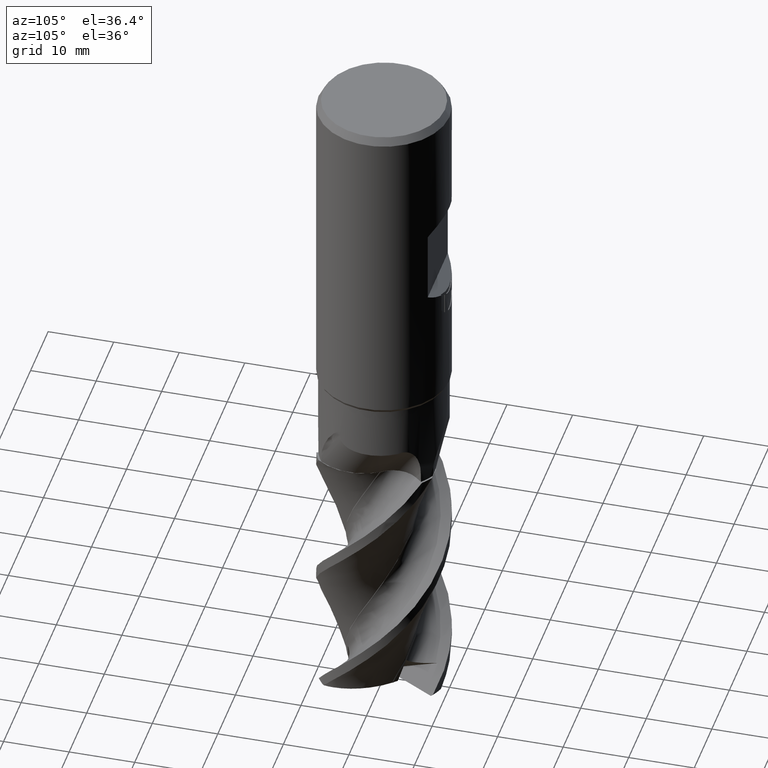
[diagram: clean part render]
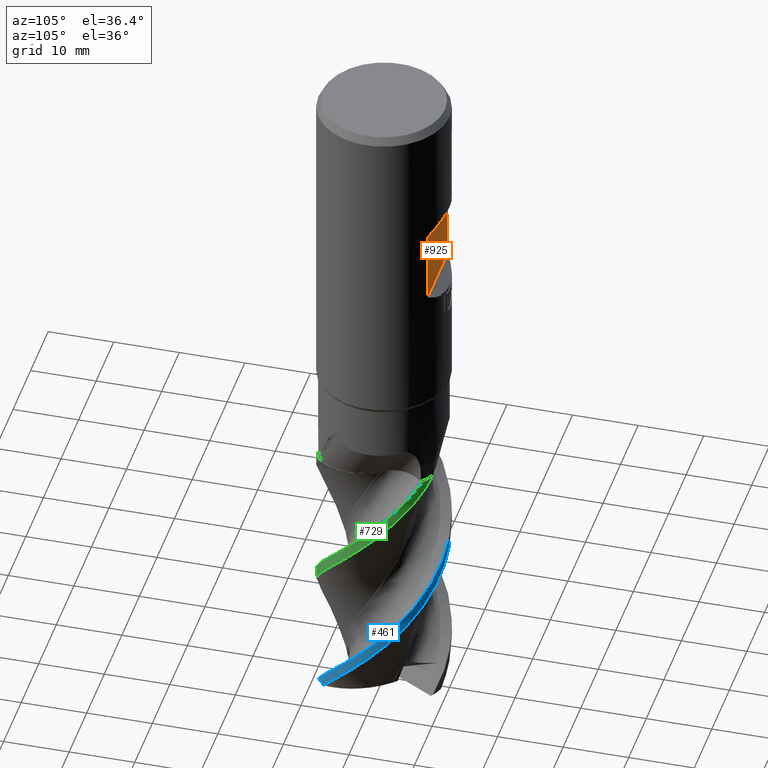
[diagram: same view with three faces highlighted in distinct colors, each labeled with its STEP entity id]
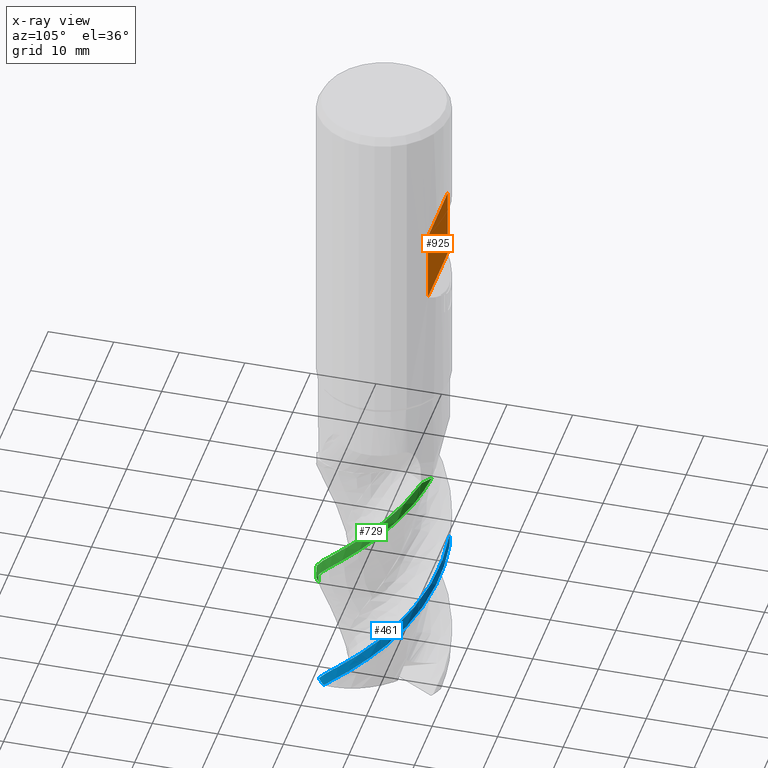
[diagram: x-ray of the same camera — body ghosted, the three highlighted faces saturated]
A machine part, auxiliary view with three faces highlighted in distinct colors.
The next image is the same camera in x-ray (body ghosted, the three faces saturated) — at least one of them is partly hidden behind the body in this view.
Their STEP definitions:

[orange] entity #925 — the highlighted planar face has unit normal (0, -1, 0).
#521=EDGE_CURVE('',#543,#929,#1381,.T.);
#529=EDGE_CURVE('',#1177,#929,#1390,.T.);
#543=VERTEX_POINT('',#1405);
#605=EDGE_CURVE('',#543,#1059,#1477,.T.);
#841=EDGE_CURVE('',#1059,#1177,#1731,.T.);
#925=ADVANCED_FACE('',(#1820),#1821,.F.);
#929=VERTEX_POINT('',#1825);
#1059=VERTEX_POINT('',#1969);
#1177=VERTEX_POINT('',#2094);
#1381=LINE('',#3022,#3023);
#1390=LINE('',#3081,#3082);
#1405=CARTESIAN_POINT('',(-5.72363520850167,8.2,-19.5));
#1477=LINE('',#4191,#4192);
#1731=LINE('',#5593,#5594);
#1820=FACE_OUTER_BOUND('',#6811,.T.);
#1821=PLANE('',#6812);
#1825=CARTESIAN_POINT('',(5.72363520850167,8.2,-19.5));
#1969=CARTESIAN_POINT('',(-5.72363520850167,8.2,-30.5));
#2094=CARTESIAN_POINT('',(5.72363520850167,8.2,-30.5));
#3022=CARTESIAN_POINT('',(-10.0,8.2,-19.5));
#3023=VECTOR('',#9876,1.0);
#3081=CARTESIAN_POINT('',(5.72363520850167,8.2,-25.0));
#3082=VECTOR('',#9885,1.0);
#4191=CARTESIAN_POINT('',(-5.72363520850167,8.2,-25.0));
#4192=VECTOR('',#10030,1.0);
#5593=CARTESIAN_POINT('',(-10.0,8.2,-30.5));
#5594=VECTOR('',#10309,1.0);
#6811=EDGE_LOOP('',(#10381,#10382,#10383,#10384));
#6812=AXIS2_PLACEMENT_3D('',#10385,#10386,#10387);
#9876=DIRECTION('',(1.0,0.0,0.0));
#9885=DIRECTION('',(-0.0,-0.0,1.0));
#10030=DIRECTION('',(0.0,0.0,-1.0));
#10309=DIRECTION('',(1.0,0.0,0.0));
#10381=ORIENTED_EDGE('',*,*,#529,.F.);
#10382=ORIENTED_EDGE('',*,*,#841,.F.);
#10383=ORIENTED_EDGE('',*,*,#605,.F.);
#10384=ORIENTED_EDGE('',*,*,#521,.T.);
#10385=CARTESIAN_POINT('',(-10.0,8.2,-30.5));
#10386=DIRECTION('',(0.0,-1.0,0.0));
#10387=DIRECTION('',(0.0,0.0,-1.0));

[blue] entity #461 — the highlighted conical surface has half-angle 0 deg.
#461=ADVANCED_FACE('',(#1316),#1317,.T.);
#649=EDGE_CURVE('',#703,#1271,#1523,.T.);
#703=VERTEX_POINT('',#1580);
#835=VERTEX_POINT('',#1725);
#1045=EDGE_CURVE('',#1137,#1271,#1953,.T.);
#1057=EDGE_CURVE('',#1077,#835,#1967,.T.);
#1077=VERTEX_POINT('',#1987);
#1101=EDGE_CURVE('',#703,#1077,#2011,.T.);
#1117=EDGE_CURVE('',#1137,#835,#2028,.T.);
#1137=VERTEX_POINT('',#2050);
#1271=VERTEX_POINT('',#2202);
#1316=FACE_OUTER_BOUND('',#2244,.T.);
#1317=CONICAL_SURFACE('',#2245,9.99995,2.51256281405921E-006);
#1523=CIRCLE('',#4304,10.0);
#1580=CARTESIAN_POINT('',(6.61336361160003,-7.50089472934826,-103.8));
#1725=CARTESIAN_POINT('',(-1.44784733791504E-012,9.99993947624046,-79.7115437015263));
#1953=B_SPLINE_CURVE_WITH_KNOTS('',3,(#8296,#8297,#8298,#8299,#8300,#8301,#8302,#8303,#8304,#8305,#8306,#8307,#8308,#8309,#8310,#8311,#8312,#8313,#8314,#8315,#8316,#8317,#8318,#8319,#8320,#8321,#8322,#8323,#8324,#8325,#8326,#8327,#8328,#8329,#8330,#8331,#8332,#8333,#8334,#8335,#8336,#8337,#8338,#8339,#8340,#8341,#8342,#8343,#8344,#8345),.UNSPECIFIED.,.F.,.F.,(4,2,2,2,2,2,2,2,2,2,2,2,2,2,2,2,2,2,2,2,2,2,2,2,4),(0.0,1.83688179088632,5.68461323344617,6.58714347548121,8.38778271226653,10.2578606888634,12.9205590427445,14.8115356261273,18.507071820997,20.4283711112207,22.1734569225614,24.0094227868724,26.6497551941611,28.5041572687774,32.1316176911137,34.0160028990023,35.713504521051,37.512762740781,39.9990802534086,40.9011966697282,43.2801547555303,44.7519676223213,45.309646177908,46.6616631189539,47.8933672128346),.UNSPECIFIED.);
#1967=B_SPLINE_CURVE_WITH_KNOTS('',3,(#8362,#8363,#8364,#8365,#8366,#8367,#8368,#8369,#8370,#8371,#8372,#8373,#8374,#8375,#8376,#8377,#8378,#8379,#8380,#8381,#8382,#8383,#8384,#8385,#8386,#8387,#8388,#8389,#8390,#8391,#8392,#8393,#8394,#8395,#8396,#8397,#8398,#8399,#8400,#8401,#8402,#8403,#8404,#8405,#8406,#8407,#8408,#8409,#8410,#8411),.UNSPECIFIED.,.F.,.F.,(4,2,2,2,2,2,2,2,2,2,2,2,2,2,2,2,2,2,2,2,2,2,2,2,4),(0.0,6.65242903024763,7.56982083744152,9.39002536430975,13.1654422231845,14.8642968365969,18.4570516658264,19.775683816953,21.4348193968141,23.0557497425016,26.2948814002811,27.9268426898688,29.5151957014848,32.6893999396295,34.2886948796586,35.8451217292304,38.9553312426421,40.5223597795722,43.2828128134381,44.4623509281644,46.282936741235,48.9671843551809,50.3099974556583,50.9855578351501,51.6831145815169),.UNSPECIFIED.);
#1987=CARTESIAN_POINT('',(6.74215560576316,-7.38534596503248,-103.744987352058));
#2011=ELLIPSE('',#8527,10.5146239393431,10.0000016139019);
#2028=LINE('',#8564,#8565);
#2050=CARTESIAN_POINT('',(2.41256380381924E-013,9.99993471722382,-77.8174550813689));
#2202=CARTESIAN_POINT('',(5.16433493080699,-8.56327301459242,-103.8));
#2244=EDGE_LOOP('',(#9816,#9817,#9818,#9819,#9820));
#2245=AXIS2_PLACEMENT_3D('',#9821,#9822,#9823);
#4304=AXIS2_PLACEMENT_3D('',#10068,#10069,#10070);
#8296=CARTESIAN_POINT('',(-9.8195921515313,1.89039942540851,-64.0));
#8297=CARTESIAN_POINT('',(-9.73680179583058,2.32045577612645,-64.4279032008373));
#8298=CARTESIAN_POINT('',(-9.62616861492684,2.74299842483845,-64.8612519519152));
#8299=CARTESIAN_POINT('',(-9.20147259722876,4.02005363807295,-66.2119453588237));
#8300=CARTESIAN_POINT('',(-8.79681885369268,4.84242542738371,-67.1408594066878));
#8301=CARTESIAN_POINT('',(-8.16514397107321,5.77707335028328,-68.2666298142365));
#8302=CARTESIAN_POINT('',(-8.03905614943915,5.95133236644778,-68.4799434901195));
#8303=CARTESIAN_POINT('',(-7.6434263994983,6.46232165426562,-69.1162582574725));
#8304=CARTESIAN_POINT('',(-7.35946761866097,6.78430140816072,-69.5345292134535));
#8305=CARTESIAN_POINT('',(-6.72891096634235,7.41115819908335,-70.4222580444062));
#8306=CARTESIAN_POINT('',(-6.38746227012636,7.70720699300879,-70.8778866002762));
#8307=CARTESIAN_POINT('',(-5.51751157652145,8.36455225197479,-71.9813376341191));
#8308=CARTESIAN_POINT('',(-4.96811168381596,8.70254915214437,-72.6321638236527));
#8309=CARTESIAN_POINT('',(-3.97444745947986,9.18766042162107,-73.7311607623126));
#8310=CARTESIAN_POINT('',(-3.55336347728873,9.3585454748018,-74.1709372673356));
#8311=CARTESIAN_POINT('',(-2.26623385999863,9.78088875441132,-75.514618129322));
#8312=CARTESIAN_POINT('',(-1.38483293467721,9.94334112034112,-76.4215144979877));
#8313=CARTESIAN_POINT('',(-0.0363006088850028,10.0105285744786,-77.7826774828773));
#8314=CARTESIAN_POINT('',(0.428775960197617,10.0016701883967,-78.247236054852));
#8315=CARTESIAN_POINT('',(1.3172894859256,9.9218848606799,-79.1252920679502));
#8316=CARTESIAN_POINT('',(1.7360398637281,9.85749995050665,-79.5382619480409));
#8317=CARTESIAN_POINT('',(2.59874100573697,9.66698184683463,-80.4203157849213));
#8318=CARTESIAN_POINT('',(3.03234541832829,9.53971035256465,-80.8759048502464));
#8319=CARTESIAN_POINT('',(4.0615590237687,9.16084746319968,-81.9857675872801));
#8320=CARTESIAN_POINT('',(4.64847958002076,8.87790319686943,-82.6431174089107));
#8321=CARTESIAN_POINT('',(5.59777984951222,8.29905298076998,-83.7477824578689));
#8322=CARTESIAN_POINT('',(5.96848125758253,8.03655919389752,-84.1873210526903));
#8323=CARTESIAN_POINT('',(7.01801302311412,7.17985215591402,-85.531584927985));
#8324=CARTESIAN_POINT('',(7.6301750734402,6.5245551675841,-86.4390864183552));
#8325=CARTESIAN_POINT('',(8.41368232905812,5.42424226569849,-87.8005745330614));
#8326=CARTESIAN_POINT('',(8.65678997469815,5.02769801326058,-88.2649574624631));
#8327=CARTESIAN_POINT('',(9.06669987096167,4.23928760390179,-89.1392161205382));
#8328=CARTESIAN_POINT('',(9.23701700052727,3.85479958518363,-89.5493891767617));
#8329=CARTESIAN_POINT('',(9.5410969636832,3.02853654652327,-90.4285406652441));
#8330=CARTESIAN_POINT('',(9.66794885189552,2.59471603395918,-90.8842700001985));
#8331=CARTESIAN_POINT('',(9.89893487455372,1.54824090147482,-91.9688175478429));
#8332=CARTESIAN_POINT('',(9.9766331728941,0.927206279076268,-92.6004351387727));
#8333=CARTESIAN_POINT('',(10.0022994472353,0.0727103344601177,-93.450955853776));
#8334=CARTESIAN_POINT('',(10.0013906285882,-0.155806862244051,-93.6766676732029));
#8335=CARTESIAN_POINT('',(9.96927950575422,-0.989334851649771,-94.4938435346194));
#8336=CARTESIAN_POINT('',(9.88345283613999,-1.81925026488744,-95.3172827968889));
#8337=CARTESIAN_POINT('',(9.4356740911284,-3.3686339840874,-96.9491844614293));
#8338=CARTESIAN_POINT('',(9.20938442838165,-3.94633219056517,-97.5752784988786));
#8339=CARTESIAN_POINT('',(8.8234325710378,-4.71192885272547,-98.4285172984764));
#8340=CARTESIAN_POINT('',(8.7095674962793,-4.91930502920194,-98.6622106111756));
#8341=CARTESIAN_POINT('',(8.29297727467946,-5.61762601590349,-99.4586691797531));
#8342=CARTESIAN_POINT('',(7.84686830302832,-6.27042652931896,-100.238006715456));
#8343=CARTESIAN_POINT('',(6.59274472440632,-7.56807428979895,-102.064097949723));
#8344=CARTESIAN_POINT('',(5.91269706929701,-8.11194858551921,-102.941449862242));
#8345=CARTESIAN_POINT('',(5.16433493080699,-8.56327301459242,-103.8));
#8362=CARTESIAN_POINT('',(6.70069878454363,-7.42298025046648,-103.8));
#8363=CARTESIAN_POINT('',(7.87523291662968,-6.36272706377205,-102.246444694812));
#8364=CARTESIAN_POINT('',(8.78122939826264,-5.04005581548762,-100.616631906771));
#8365=CARTESIAN_POINT('',(9.42309333576583,-3.35452542420069,-98.8528470911915));
#8366=CARTESIAN_POINT('',(9.49503231105218,-3.14567206700517,-98.6365226572576));
#8367=CARTESIAN_POINT('',(9.69273872719166,-2.5003774802769,-97.9681462705121));
#8368=CARTESIAN_POINT('',(9.79449059088749,-2.06518058369112,-97.5199298807626));
#8369=CARTESIAN_POINT('',(10.0166558618159,-0.71776142373854,-96.1404005826739));
#8370=CARTESIAN_POINT('',(10.0412635772841,0.214397438797438,-95.198551826366));
#8371=CARTESIAN_POINT('',(9.88640015333802,1.56058754689594,-93.8655324811264));
#8372=CARTESIAN_POINT('',(9.81252710581884,1.97388770687788,-93.4563811813412));
#8373=CARTESIAN_POINT('',(9.4947290722002,3.2658053952675,-92.1282797482288));
#8374=CARTESIAN_POINT('',(9.16147641647547,4.10820599737784,-91.2094885034884));
#8375=CARTESIAN_POINT('',(8.559188232589,5.18158289602682,-89.9737576016456));
#8376=CARTESIAN_POINT('',(8.38251683771596,5.46297263147413,-89.6429721193486));
#8377=CARTESIAN_POINT('',(7.95021396939508,6.08026826251375,-88.9010563501039));
#8378=CARTESIAN_POINT('',(7.68932378961563,6.40739330717991,-88.4939724048626));
#8379=CARTESIAN_POINT('',(7.12365351020546,7.03033859386279,-87.6547094084142));
#8380=CARTESIAN_POINT('',(6.82622228350467,7.31930686483281,-87.2370745854592));
#8381=CARTESIAN_POINT('',(5.88704796096753,8.12540508720116,-85.9848092828037));
#8382=CARTESIAN_POINT('',(5.1924169279643,8.5870883671453,-85.1435105594343));
#8383=CARTESIAN_POINT('',(4.06503929654036,9.14615766311109,-83.9043643458397));
#8384=CARTESIAN_POINT('',(3.67779866338934,9.30888198391779,-83.4957066711691));
#8385=CARTESIAN_POINT('',(2.88126238281649,9.58489166619146,-82.6548199951253));
#8386=CARTESIAN_POINT('',(2.48173089553118,9.69589130204028,-82.237184012907));
#8387=CARTESIAN_POINT('',(1.27108329513275,9.95307226358015,-80.9848963115355));
#8388=CARTESIAN_POINT('',(0.440107723090092,10.0252408914873,-80.1435994403185));
#8389=CARTESIAN_POINT('',(-0.817412511275718,9.9753882567732,-78.9044860540787));
#8390=CARTESIAN_POINT('',(-1.23530223877635,9.93253875688308,-78.4958550015093));
#8391=CARTESIAN_POINT('',(-2.06676097456496,9.79285956477666,-77.6549464116611));
#8392=CARTESIAN_POINT('',(-2.47062442938916,9.69871517567038,-77.2373116026611));
#8393=CARTESIAN_POINT('',(-3.65636937240386,9.34398156987025,-75.9850493355579));
#8394=CARTESIAN_POINT('',(-4.42016844619223,9.00893253577936,-75.1437492946965));
#8395=CARTESIAN_POINT('',(-5.49973107171853,8.36236803552893,-73.9045930056067));
#8396=CARTESIAN_POINT('',(-5.84588420031066,8.12444555383164,-73.4959391178302));
#8397=CARTESIAN_POINT('',(-6.77321625649006,7.3951532289451,-72.3191357709793));
#8398=CARTESIAN_POINT('',(-7.3084292274384,6.8661666465248,-71.5571990319618));
#8399=CARTESIAN_POINT('',(-7.97908841823686,6.03610293625383,-70.4797606622806));
#8400=CARTESIAN_POINT('',(-8.16852772302857,5.77727778068163,-70.1576119929425));
#8401=CARTESIAN_POINT('',(-8.6192443961027,5.09444819231339,-69.3426668234155));
#8402=CARTESIAN_POINT('',(-8.85834982171171,4.66614930607128,-68.8686222307968));
#8403=CARTESIAN_POINT('',(-9.37493716570216,3.55548390434748,-67.6544134211693));
#8404=CARTESIAN_POINT('',(-9.60768486310159,2.86561181045573,-66.9194656923198));
#8405=CARTESIAN_POINT('',(-9.84171092217013,1.80810669656245,-65.8234310821178));
#8406=CARTESIAN_POINT('',(-9.90080767510292,1.45051703467983,-65.4579322364689));
#8407=CARTESIAN_POINT('',(-9.96028482450916,0.907833202887552,-64.9115894358543));
#8408=CARTESIAN_POINT('',(-9.97526294143053,0.725200364049062,-64.7291120232753));
#8409=CARTESIAN_POINT('',(-9.9954916861099,0.352345378317829,-64.3594297163902));
#8410=CARTESIAN_POINT('',(-10.0001517105948,0.166830188109848,-64.1769858654546));
#8411=CARTESIAN_POINT('',(-9.99988957941518,-0.0144363951061299,-64.0));
#8527=AXIS2_PLACEMENT_3D('',#10556,#10557,#10558);
#8564=CARTESIAN_POINT('',(-1.23222961858351E-015,9.99995,-83.9));
#8565=VECTOR('',#10572,1.0);
#9816=ORIENTED_EDGE('',*,*,#1117,.F.);
#9817=ORIENTED_EDGE('',*,*,#1045,.T.);
#9818=ORIENTED_EDGE('',*,*,#649,.F.);
#9819=ORIENTED_EDGE('',*,*,#1101,.T.);
#9820=ORIENTED_EDGE('',*,*,#1057,.T.);
#9821=CARTESIAN_POINT('',(0.0,0.0,-83.9));
#9822=DIRECTION('',(0.0,-0.0,-1.0));
#9823=DIRECTION('',(0.0,1.0,0.0));
#10068=CARTESIAN_POINT('',(0.0,0.0,-103.8));
#10069=DIRECTION('',(0.0,0.0,-1.0));
#10070=DIRECTION('',(0.0,1.0,0.0));
#10556=CARTESIAN_POINT('',(-7.07006926070619E-006,-4.08190638978567E-006,-104.442334297003));
#10557=DIRECTION('',(-0.267616567329814,-0.154508497187472,0.951056516295155));
#10558=DIRECTION('',(-0.823639103546334,-0.475528258147576,-0.309016994374943));
#10572=DIRECTION('',(-3.0769003864715E-022,2.51256281405657E-006,-0.999999999996844));

[green] entity #729 — the highlighted conical surface has half-angle 0 deg.
#527=EDGE_CURVE('',#663,#1041,#1388,.T.);
#629=EDGE_CURVE('',#1041,#1241,#1501,.T.);
#663=VERTEX_POINT('',#1537);
#729=ADVANCED_FACE('',(#1606),#1607,.T.);
#837=EDGE_CURVE('',#1241,#1037,#1727,.T.);
#1011=EDGE_CURVE('',#663,#1037,#1916,.T.);
#1037=VERTEX_POINT('',#1945);
#1041=VERTEX_POINT('',#1949);
#1241=VERTEX_POINT('',#2169);
#1388=B_SPLINE_CURVE_WITH_KNOTS('',3,(#3031,#3032,#3033,#3034,#3035,#3036,#3037,#3038,#3039,#3040,#3041,#3042,#3043,#3044,#3045,#3046,#3047,#3048,#3049,#3050,#3051,#3052,#3053,#3054,#3055,#3056,#3057,#3058,#3059,#3060,#3061,#3062,#3063,#3064,#3065,#3066,#3067,#3068,#3069,#3070,#3071,#3072,#3073,#3074,#3075,#3076,#3077,#3078),.UNSPECIFIED.,.F.,.F.,(4,2,2,2,2,2,2,2,2,2,2,2,2,2,2,2,2,2,2,2,2,2,2,4),(0.0,6.64068326265887,7.51101552512899,9.33286572924167,13.1138203166766,14.8157729787719,18.4251083771162,19.3958610676863,21.2196203799739,22.8839885589064,26.2016789542548,27.891279023431,29.5472804074097,32.8484674985339,34.529769989523,36.1775548135889,39.4621667081232,41.1349242422898,44.1728953679223,46.4624545464466,48.136192734862,50.6469749584709,51.9055746026051,53.2088793390515),.UNSPECIFIED.);
#1501=CIRCLE('',#4231,9.9999);
#1537=CARTESIAN_POINT('',(-2.6094459831275E-015,-9.99996578520206,-90.1825104212311));
#1606=FACE_OUTER_BOUND('',#4591,.T.);
#1607=CONICAL_SURFACE('',#4592,9.99995,2.51256281405921E-006);
#1727=B_SPLINE_CURVE_WITH_KNOTS('',3,(#5533,#5534,#5535,#5536,#5537,#5538,#5539,#5540,#5541,#5542,#5543,#5544,#5545,#5546,#5547,#5548,#5549,#5550,#5551,#5552,#5553,#5554,#5555,#5556,#5557,#5558,#5559,#5560,#5561,#5562,#5563,#5564,#5565,#5566,#5567,#5568,#5569,#5570,#5571,#5572,#5573,#5574,#5575,#5576,#5577,#5578,#5579,#5580,#5581,#5582),.UNSPECIFIED.,.F.,.F.,(4,2,2,2,2,2,2,2,2,2,2,2,2,2,2,2,2,2,2,2,2,2,2,2,4),(0.0,1.83688179135401,5.68461323579084,6.58714347857402,8.3877827172795,10.2578606943036,12.9205590335626,14.8115356182549,18.5070718130775,20.428371103722,22.1734569234447,24.0094227896516,26.64975526699,28.5041573371387,32.1316177618642,34.0160029671974,35.713504557953,37.5127627714816,39.9990799403069,40.9011963581143,43.2801510430453,44.7519649616794,45.3096439069337,46.6616386793681,47.8933666567177),.UNSPECIFIED.);
#1916=LINE('',#7850,#7851);
#1945=CARTESIAN_POINT('',(-2.35745873104957E-013,-9.9999610260814,-88.2883803977099));
#1949=CARTESIAN_POINT('',(4.9874425048065,8.66737660836593,-64.0));
#2169=CARTESIAN_POINT('',(6.54693000146895,7.55881654532413,-64.0));
#3031=CARTESIAN_POINT('',(-9.77883886096595,-2.0914852452891,-103.8));
#3032=CARTESIAN_POINT('',(-9.44848405089696,-3.63605626091209,-102.249187707848));
#3033=CARTESIAN_POINT('',(-8.75789410263038,-5.07955672639575,-100.622445491449));
#3034=CARTESIAN_POINT('',(-7.62930689280085,-6.46810779452195,-98.8721933189664));
#3035=CARTESIAN_POINT('',(-7.49254629604308,-6.62626241859361,-98.6676168849995));
#3036=CARTESIAN_POINT('',(-7.04317414807792,-7.11297155995889,-98.0122130140478));
#3037=CARTESIAN_POINT('',(-6.71889474799849,-7.41976781815714,-97.5648346881414));
#3038=CARTESIAN_POINT('',(-5.66798611377618,-8.28982725590039,-96.1870646410182));
#3039=CARTESIAN_POINT('',(-4.87618227714409,-8.78026502621784,-95.2458648732193));
#3040=CARTESIAN_POINT('',(-3.63734719216265,-9.32446358111721,-93.913196876602));
#3041=CARTESIAN_POINT('',(-3.24465282265077,-9.4685090603349,-93.506353485213));
#3042=CARTESIAN_POINT('',(-1.97168260219471,-9.84508498531732,-92.1824353027765));
#3043=CARTESIAN_POINT('',(-1.07782254363887,-9.98221713871714,-91.2654298583168));
#3044=CARTESIAN_POINT('',(0.0619302998294116,-10.0026922756575,-90.120020868926));
#3045=CARTESIAN_POINT('',(0.30435109084067,-9.99829014130467,-89.8777663591583));
#3046=CARTESIAN_POINT('',(1.00333684118142,-9.95998492490268,-89.1833771431245));
#3047=CARTESIAN_POINT('',(1.45246369831037,-9.90447982872673,-88.7459249040243));
#3048=CARTESIAN_POINT('',(2.31114969922456,-9.73817015364746,-87.8773494650205));
#3049=CARTESIAN_POINT('',(2.71365047164964,-9.63360684573122,-87.4597621111952));
#3050=CARTESIAN_POINT('',(3.89056082293814,-9.24892000455595,-86.2085086957618));
#3051=CARTESIAN_POINT('',(4.64400131775861,-8.89534633364354,-85.3670333126094));
#3052=CARTESIAN_POINT('',(5.70703984306358,-8.2224645722558,-84.1215839715724));
#3053=CARTESIAN_POINT('',(6.04732267453345,-7.97559754972338,-83.7147225680693));
#3054=CARTESIAN_POINT('',(6.69683606397774,-7.43810960813598,-82.877416378075));
#3055=CARTESIAN_POINT('',(6.99991557855391,-7.15340407818445,-82.4598276436237));
#3056=CARTESIAN_POINT('',(7.84831989107464,-6.25160771479898,-81.208552797376));
#3057=CARTESIAN_POINT('',(8.34004771596788,-5.58008868861739,-80.3670775873067));
#3058=CARTESIAN_POINT('',(8.95042541208423,-4.4798337682104,-79.1216473657179));
#3059=CARTESIAN_POINT('',(9.13071660556288,-4.1000102942542,-78.7148124330138));
#3060=CARTESIAN_POINT('',(9.44306695573259,-3.31682932236164,-77.8774984311136));
#3061=CARTESIAN_POINT('',(9.5725543181052,-2.92164018535958,-77.4599111008232));
#3062=CARTESIAN_POINT('',(9.88474332267391,-1.7234627608238,-76.2086602496202));
#3063=CARTESIAN_POINT('',(9.99430963367123,-0.898436394510029,-75.3671838143824));
#3064=CARTESIAN_POINT('',(10.0024693032426,0.359622733105333,-74.1217297384152));
#3065=CARTESIAN_POINT('',(9.97859660606444,0.779338569649186,-73.7148678397879));
#3066=CARTESIAN_POINT('',(9.83447160506213,1.96964385012298,-72.5240472343817));
#3067=CARTESIAN_POINT('',(9.65324583995037,2.7202807293979,-71.7432567009065));
#3068=CARTESIAN_POINT('',(9.1912367893241,3.98154742452662,-70.3854175321395));
#3069=CARTESIAN_POINT('',(8.94467643252033,4.50934815685072,-69.8021934210437));
#3070=CARTESIAN_POINT('',(8.43601326951696,5.38658625121929,-68.806122164493));
#3071=CARTESIAN_POINT('',(8.19768044773576,5.74342251251522,-68.3869306527791));
#3072=CARTESIAN_POINT('',(7.5329013495539,6.60927962203808,-67.2958520669431));
#3073=CARTESIAN_POINT('',(7.08513930792245,7.08680618713943,-66.6333781660914));
#3074=CARTESIAN_POINT('',(6.35046879868055,7.73150329859229,-65.6452921599768));
#3075=CARTESIAN_POINT('',(6.09403158213603,7.93527926699605,-65.3156012671725));
#3076=CARTESIAN_POINT('',(5.55087725277091,8.32474630585372,-64.647973383861));
#3077=CARTESIAN_POINT('',(5.27020168885909,8.50467026320393,-64.3185256988932));
#3078=CARTESIAN_POINT('',(4.98744250480662,8.66737660836589,-64.0));
#4231=AXIS2_PLACEMENT_3D('',#10045,#10046,#10047);
#4591=EDGE_LOOP('',(#10151,#10152,#10153,#10154));
#4592=AXIS2_PLACEMENT_3D('',#10155,#10156,#10157);
#5533=CARTESIAN_POINT('',(6.54693000146895,7.55881654532412,-64.0));
#5534=CARTESIAN_POINT('',(6.87797454848344,7.27208981866698,-64.4279032009462));
#5535=CARTESIAN_POINT('',(7.18859062601843,6.96500734911857,-64.8612519520591));
#5536=CARTESIAN_POINT('',(8.08220487418768,5.95868220187659,-66.211945359496));
#5537=CARTESIAN_POINT('',(8.5920728632851,5.19705588545506,-67.1408594074472));
#5538=CARTESIAN_POINT('',(9.08566426677801,4.18268542856569,-68.2666298151124));
#5539=CARTESIAN_POINT('',(9.17353309085709,3.98636066366194,-68.4799434911771));
#5540=CARTESIAN_POINT('',(9.41824792036478,3.38824060519266,-69.1162582591371));
#5541=CARTESIAN_POINT('',(9.55511117638141,2.98133520997251,-69.5345292155667));
#5542=CARTESIAN_POINT('',(9.78270675558495,2.12182873461975,-70.4222580469727));
#5543=CARTESIAN_POINT('',(9.86836818366879,1.67810109259425,-70.8778866028843));
#5544=CARTESIAN_POINT('',(10.0026705294664,0.596029065900712,-71.9813376331369));
#5545=CARTESIAN_POINT('',(10.0206844851393,-0.0487636444762685,-72.6321638190291));
#5546=CARTESIAN_POINT('',(9.94397105712333,-1.15185773711756,-73.7311607546126));
#5547=CARTESIAN_POINT('',(9.88141986353201,-1.60196968959731,-74.1709372597852));
#5548=CARTESIAN_POINT('',(9.60361506518919,-2.92782827594336,-75.5146181213526));
#5549=CARTESIAN_POINT('',(9.30360247908571,-3.77237005113482,-76.4215144896905));
#5550=CARTESIAN_POINT('',(8.68752235962423,-4.97382703011945,-77.78267747404));
#5551=CARTESIAN_POINT('',(8.44731248808663,-5.37216596076443,-78.2472360460219));
#5552=CARTESIAN_POINT('',(7.93395960425474,-6.1017485836375,-79.1252920609729));
#5553=CARTESIAN_POINT('',(7.66882544668072,-6.43220459504261,-79.5382619425619));
#5554=CARTESIAN_POINT('',(7.07248135707957,-7.08406664958431,-80.4203157811365));
#5555=CARTESIAN_POINT('',(6.74545880365912,-7.39594333909012,-80.8759048464781));
#5556=CARTESIAN_POINT('',(5.90274710176704,-8.09783703352374,-81.9857676002183));
#5557=CARTESIAN_POINT('',(5.36424988649001,-8.46465302042689,-82.6431174386878));
#5558=CARTESIAN_POINT('',(4.38830074355365,-8.99734606448313,-83.7477825020119));
#5559=CARTESIAN_POINT('',(3.97562375154067,-9.18713600555738,-84.187321096117));
#5560=CARTESIAN_POINT('',(2.70892780776875,-9.6677036522584,-85.5315849730724));
#5561=CARTESIAN_POINT('',(1.83534294141295,-9.87020304133006,-86.4390864651483));
#5562=CARTESIAN_POINT('',(0.490690385812206,-9.99858377154723,-87.8005745812629));
#5563=CARTESIAN_POINT('',(0.0257191666241904,-10.0108490400719,-88.2649575102336));
#5564=CARTESIAN_POINT('',(-0.862019217368681,-9.97163621486324,-89.1392161603432));
#5565=CARTESIAN_POINT('',(-1.28015416757863,-9.92689116552096,-89.5493892113751));
#5566=CARTESIAN_POINT('',(-2.14775892500072,-9.77710061749084,-90.4285406948188));
#5567=CARTESIAN_POINT('',(-2.58688445380179,-9.67004731750957,-90.8842700303781));
#5568=CARTESIAN_POINT('',(-3.60865143449774,-9.34684953663817,-91.968817494431));
#5569=CARTESIAN_POINT('',(-4.18533226743349,-9.10362096391929,-92.6004350002975));
#5570=CARTESIAN_POINT('',(-4.93818053482142,-8.69860069383703,-93.4509556350992));
#5571=CARTESIAN_POINT('',(-5.13562782627907,-8.58355503938968,-93.6766674564575));
#5572=CARTESIAN_POINT('',(-5.84142795820125,-8.1389824718516,-94.4938424772389));
#5573=CARTESIAN_POINT('',(-6.51724142169995,-7.64969754527947,-95.3172803895779));
#5574=CARTESIAN_POINT('',(-7.63515728509413,-6.4872192892094,-96.9491807423623));
#5575=CARTESIAN_POINT('',(-8.02231414486998,-6.00239747530935,-97.5752751234229));
#5576=CARTESIAN_POINT('',(-8.49236482383301,-5.28535482259773,-98.4285143914586));
#5577=CARTESIAN_POINT('',(-8.61502544018706,-5.08305662577883,-98.6622078308886));
#5578=CARTESIAN_POINT('',(-9.01148962582575,-4.37312678060642,-99.4586571925153));
#5579=CARTESIAN_POINT('',(-9.35377147856455,-3.66039845226552,-100.237979955945));
#5580=CARTESIAN_POINT('',(-9.85051248568062,-1.92547670570595,-102.064067920442));
#5581=CARTESIAN_POINT('',(-9.98150179954776,-1.06458647204035,-102.941435223716));
#5582=CARTESIAN_POINT('',(-9.99817943558228,-0.190808736434009,-103.8));
#7850=CARTESIAN_POINT('',(1.22039964350502E-015,-9.99995,-83.9));
#7851=VECTOR('',#10493,1.0);
#10045=CARTESIAN_POINT('',(0.0,0.0,-64.0));
#10046=DIRECTION('',(0.0,0.0,-1.0));
#10047=DIRECTION('',(0.0,1.0,0.0));
#10151=ORIENTED_EDGE('',*,*,#1011,.F.);
#10152=ORIENTED_EDGE('',*,*,#527,.T.);
#10153=ORIENTED_EDGE('',*,*,#629,.T.);
#10154=ORIENTED_EDGE('',*,*,#837,.T.);
#10155=CARTESIAN_POINT('',(0.0,0.0,-83.9));
#10156=DIRECTION('',(0.0,-0.0,-1.0));
#10157=DIRECTION('',(0.0,1.0,0.0));
#10493=DIRECTION('',(-3.0769003864715E-022,2.51256281405657E-006,0.999999999996844));